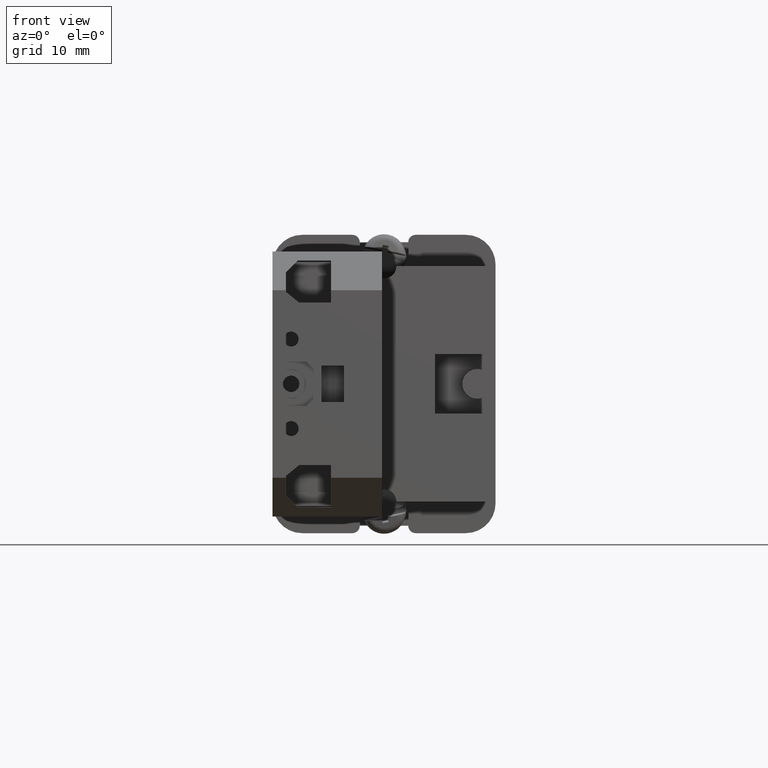
[diagram: clean part render]
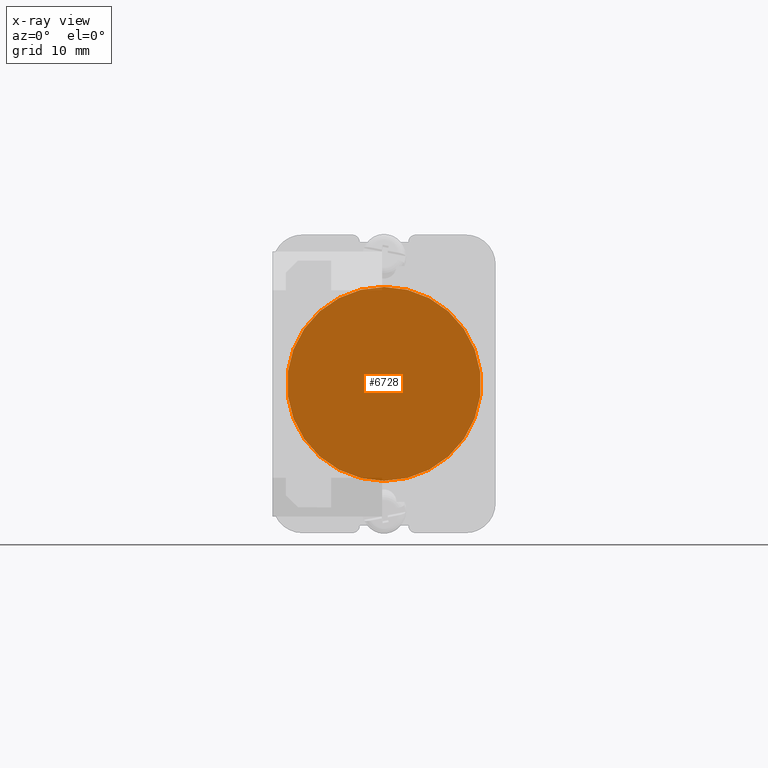
[diagram: x-ray — body ghosted, one internal face saturated and labeled with its STEP entity id]
A machine part, front view, then the same camera in x-ray: the body is ghosted and one INTERNAL B-rep face — a face not visible from any outside direction — is saturated and labeled: STEP entity #6728.
In plain terms, the highlighted planar face has unit normal (0, 1, 0).
Its self-contained STEP definition (entity closure, byte-faithful):
#306 = VERTEX_POINT ( 'NONE', #6248 ) ;
#646 = PLANE ( 'NONE',  #13767 ) ;
#1028 = EDGE_CURVE ( 'NONE', #306, #12582, #2072, .T. ) ;
#1723 = CARTESIAN_POINT ( 'NONE',  ( 0.0000000000000000000, 0.4685039370078739100, 0.0000000000000000000 ) ) ;
#2072 = CIRCLE ( 'NONE', #5239, 0.5118110236220473300 ) ;
#2811 = DIRECTION ( 'NONE',  ( 0.0000000000000000000, -0.0000000000000000000, 1.000000000000000000 ) ) ;
#4344 = CARTESIAN_POINT ( 'NONE',  ( 6.267877318470705900E-017, 0.4685039370078739100, -0.5118110236220473300 ) ) ;
#4629 = EDGE_CURVE ( 'NONE', #12582, #306, #9456, .T. ) ;
#4795 = ORIENTED_EDGE ( 'NONE', *, *, #4629, .T. ) ;
#4918 = CARTESIAN_POINT ( 'NONE',  ( 0.0000000000000000000, 0.4685039370078739100, 0.0000000000000000000 ) ) ;
#4982 = CARTESIAN_POINT ( 'NONE',  ( 0.0000000000000000000, 0.4685039370078739100, 0.0000000000000000000 ) ) ;
#5239 = AXIS2_PLACEMENT_3D ( 'NONE', #4918, #12785, #6017 ) ;
#6017 = DIRECTION ( 'NONE',  ( 0.0000000000000000000, 0.0000000000000000000, 1.000000000000000000 ) ) ;
#6099 = DIRECTION ( 'NONE',  ( 0.0000000000000000000, 0.0000000000000000000, 1.000000000000000000 ) ) ;
#6248 = CARTESIAN_POINT ( 'NONE',  ( 0.0000000000000000000, 0.4685039370078739100, 0.5118110236220473300 ) ) ;
#6442 = FACE_OUTER_BOUND ( 'NONE', #12879, .T. ) ;
#6728 = ADVANCED_FACE ( 'NONE', ( #6442 ), #646, .T. ) ;
#8439 = AXIS2_PLACEMENT_3D ( 'NONE', #4982, #12865, #6099 ) ;
#9454 = DIRECTION ( 'NONE',  ( 0.0000000000000000000, 1.000000000000000000, 0.0000000000000000000 ) ) ;
#9456 = CIRCLE ( 'NONE', #8439, 0.5118110236220473300 ) ;
#12582 = VERTEX_POINT ( 'NONE', #4344 ) ;
#12775 = ORIENTED_EDGE ( 'NONE', *, *, #1028, .T. ) ;
#12785 = DIRECTION ( 'NONE',  ( 0.0000000000000000000, 1.000000000000000000, 0.0000000000000000000 ) ) ;
#12865 = DIRECTION ( 'NONE',  ( 0.0000000000000000000, 1.000000000000000000, 0.0000000000000000000 ) ) ;
#12879 = EDGE_LOOP ( 'NONE', ( #12775, #4795 ) ) ;
#13767 = AXIS2_PLACEMENT_3D ( 'NONE', #1723, #9454, #2811 ) ;